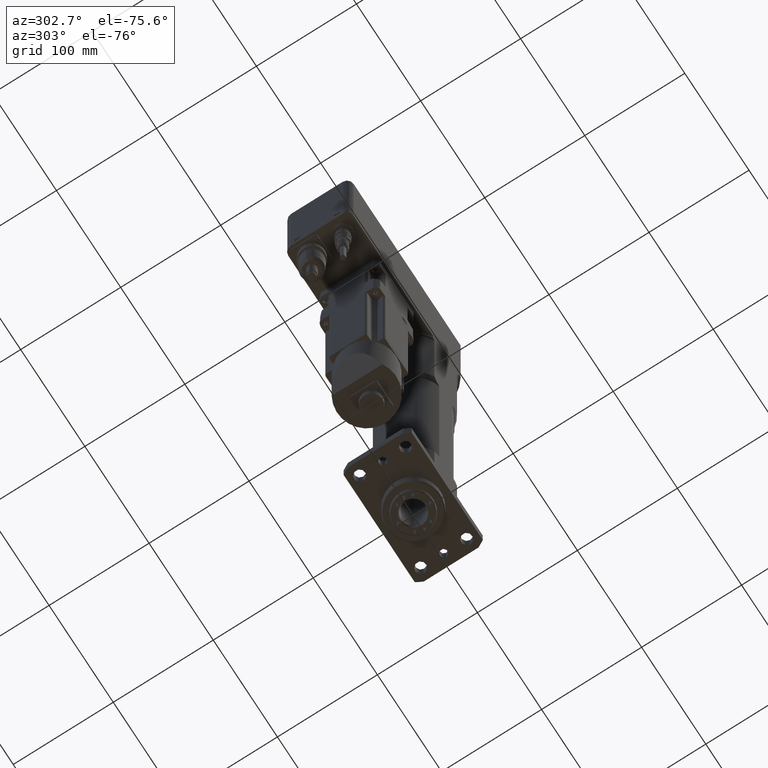
[diagram: clean part render]
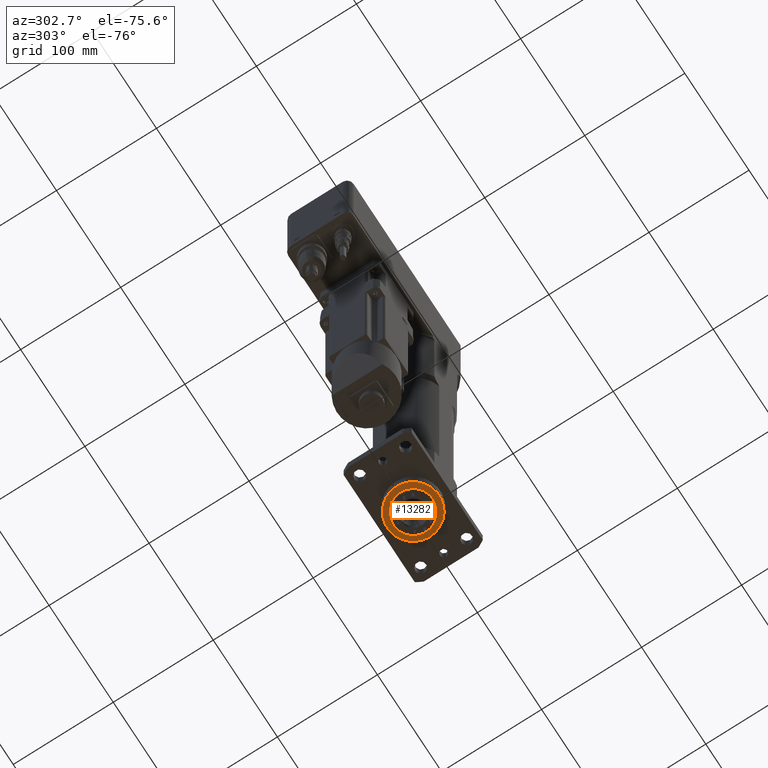
[diagram: same view with one face highlighted and labeled with its STEP entity id]
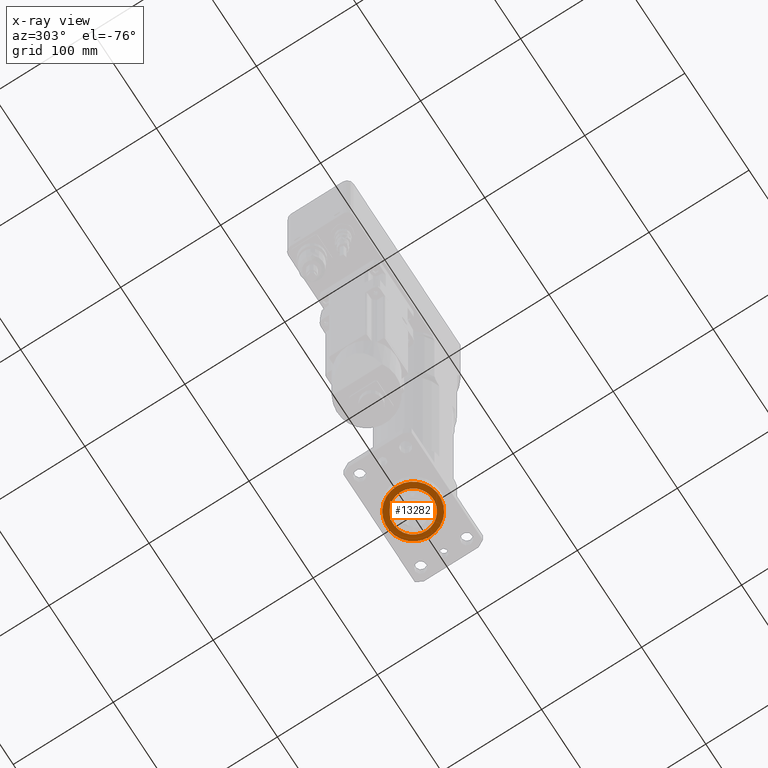
[diagram: x-ray of the same camera — body ghosted, the highlighted face saturated]
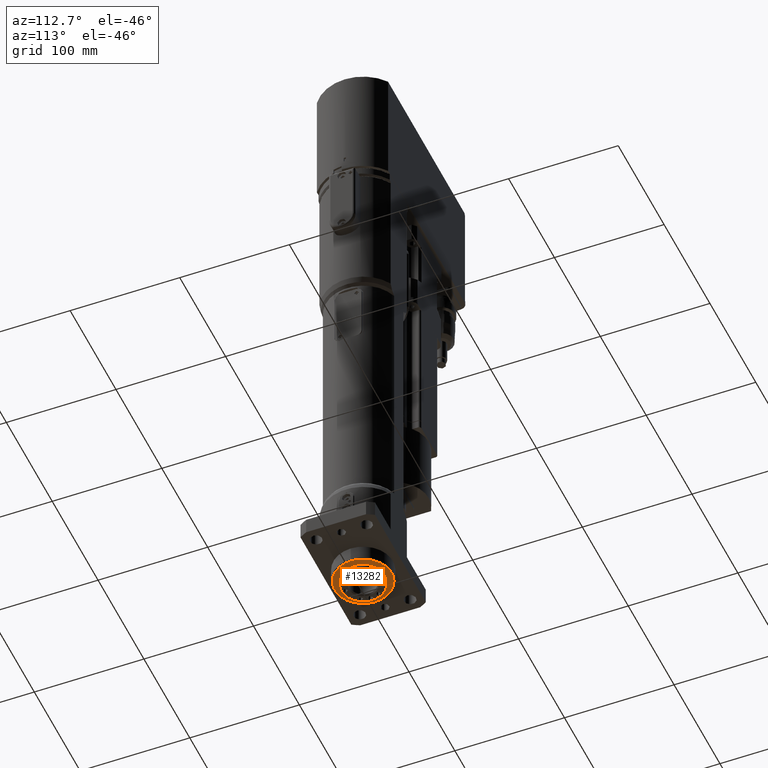
[diagram: same view with one face highlighted and labeled with its STEP entity id]
A machine part, auxiliary view. The second image highlights one B-rep face of the part: STEP entity #13282.
The next image is the same camera in x-ray: the body ghosted, the highlighted face saturated — about 0% of this face is hidden behind the body in this view.
A second angle (auxiliary view) of the same face is appended — the face is thin or edge-on in the first view.
In plain terms, the highlighted planar face has unit normal (0, 0, 1).
Its self-contained STEP definition (entity closure, byte-faithful):
#2565=PLANE('',#14600);
#2794=FACE_BOUND('',#4366,.T.);
#3437=FACE_OUTER_BOUND('',#4365,.T.);
#4365=EDGE_LOOP('',(#10819));
#4366=EDGE_LOOP('',(#10820));
#5078=CIRCLE('',#14548,20.);
#5098=CIRCLE('',#14601,26.);
#6136=VERTEX_POINT('',#24511);
#6181=VERTEX_POINT('',#24681);
#7731=EDGE_CURVE('',#6136,#6136,#5078,.T.);
#7797=EDGE_CURVE('',#6181,#6181,#5098,.T.);
#10819=ORIENTED_EDGE('',*,*,#7797,.F.);
#10820=ORIENTED_EDGE('',*,*,#7731,.T.);
#13282=ADVANCED_FACE('',(#3437,#2794),#2565,.F.);
#14548=AXIS2_PLACEMENT_3D('',#24512,#17772,#17773);
#14600=AXIS2_PLACEMENT_3D('',#24680,#17916,#17917);
#14601=AXIS2_PLACEMENT_3D('',#24682,#17918,#17919);
#17772=DIRECTION('center_axis',(0.,0.,1.));
#17773=DIRECTION('ref_axis',(-1.,0.,0.));
#17916=DIRECTION('center_axis',(0.,0.,1.));
#17917=DIRECTION('ref_axis',(1.,0.,0.));
#17918=DIRECTION('center_axis',(0.,0.,1.));
#17919=DIRECTION('ref_axis',(-1.,0.,0.));
#24511=CARTESIAN_POINT('',(20.,2.44929359829471E-15,0.));
#24512=CARTESIAN_POINT('Origin',(0.,0.,0.));
#24680=CARTESIAN_POINT('Origin',(-2.75545529808154E-16,0.,0.));
#24681=CARTESIAN_POINT('',(26.,3.18408167778312E-15,0.));
#24682=CARTESIAN_POINT('Origin',(0.,0.,0.));